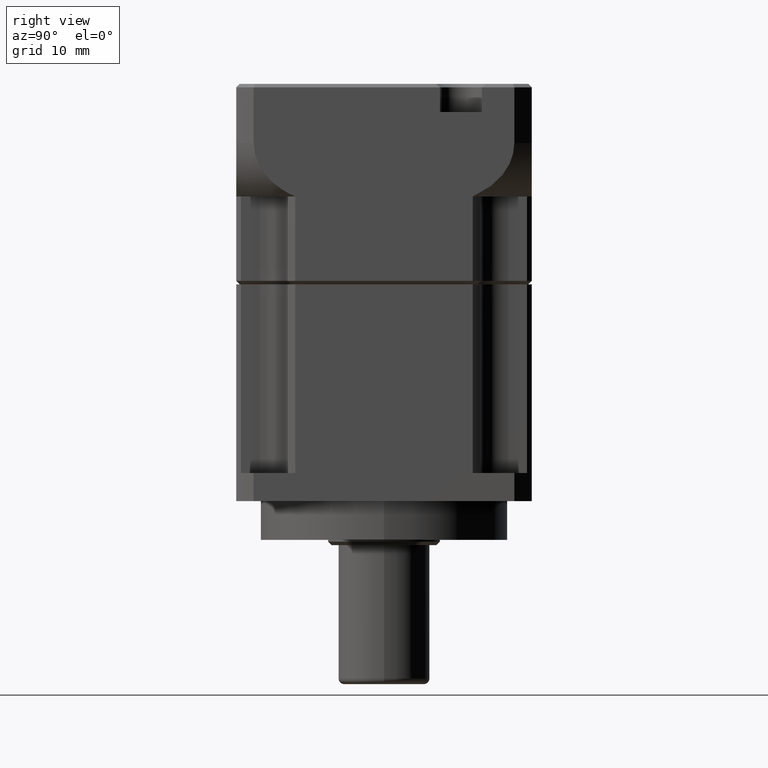
[diagram: clean part render]
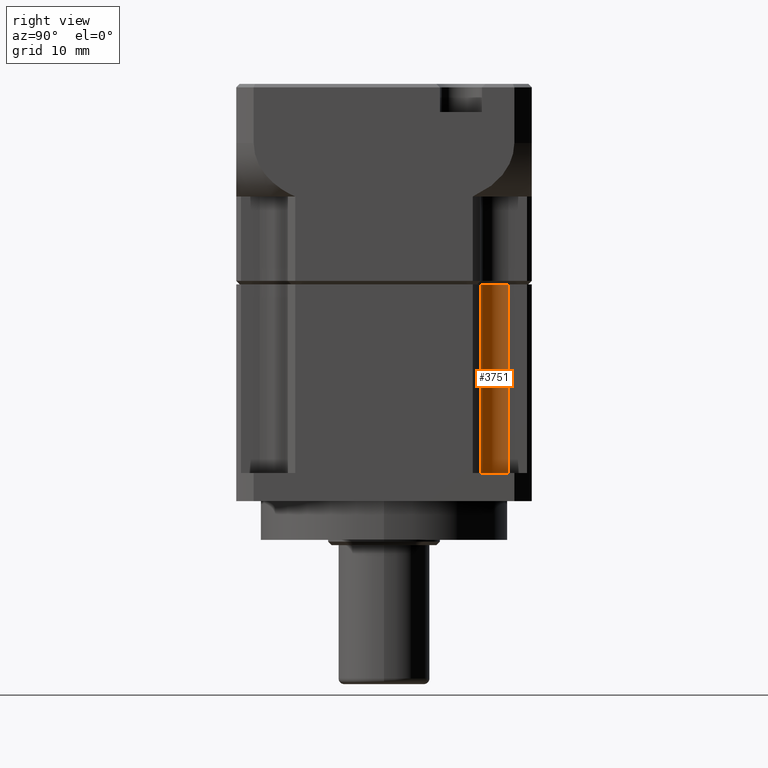
[diagram: same view with one face highlighted and labeled with its STEP entity id]
A machine part, right view. The second image highlights one B-rep face of the part: STEP entity #3751.
In plain terms, the highlighted cylindrical surface (edge-blend (fillet) strip) has radius 4 mm, axis along (-0, -0, -1).
Its self-contained STEP definition (entity closure, byte-faithful):
#293 = DIRECTION ( 'NONE',  ( -1.000000000000000000, 0.0000000000000000000, 0.0000000000000000000 ) ) ;
#850 = CARTESIAN_POINT ( 'NONE',  ( 3671.281545255493700, 1430.015802524130800, 0.0000000000000000000 ) ) ;
#1004 = EDGE_CURVE ( 'NONE', #6354, #9099, #2531, .T. ) ;
#1050 = CARTESIAN_POINT ( 'NONE',  ( 3671.281545320003300, 1434.015802565369500, 0.0000000000000000000 ) ) ;
#1784 = CARTESIAN_POINT ( 'NONE',  ( 3671.281545255493700, 1430.015802524130800, 26.80000000000000100 ) ) ;
#1896 = DIRECTION ( 'NONE',  ( -0.0000000000000000000, -0.0000000000000000000, -1.000000000000000000 ) ) ;
#1966 = CARTESIAN_POINT ( 'NONE',  ( 3671.281545255493700, 1430.015802524130800, 26.80000000000000100 ) ) ;
#2011 = CARTESIAN_POINT ( 'NONE',  ( 3671.281545320003300, 1434.015802565369500, 26.80000000000000100 ) ) ;
#2071 = CARTESIAN_POINT ( 'NONE',  ( 3667.281545278764500, 1434.015802557830500, 26.80000000000000100 ) ) ;
#2369 = VERTEX_POINT ( 'NONE', #850 ) ;
#2531 = LINE ( 'NONE', #2071, #2810 ) ;
#2810 = VECTOR ( 'NONE', #6257, 1000.000000000000000 ) ;
#3091 = DIRECTION ( 'NONE',  ( -0.0000000000000000000, -0.0000000000000000000, -1.000000000000000000 ) ) ;
#3629 = EDGE_CURVE ( 'NONE', #2369, #9099, #4958, .T. ) ;
#3750 = DIRECTION ( 'NONE',  ( -0.0000000000000000000, -0.0000000000000000000, -1.000000000000000000 ) ) ;
#3751 = ADVANCED_FACE ( 'NONE', ( #5233 ), #5368, .F. ) ;
#3861 = CARTESIAN_POINT ( 'NONE',  ( 3671.281545320003300, 1434.015802565369500, 26.80000000000000100 ) ) ;
#4541 = ORIENTED_EDGE ( 'NONE', *, *, #3629, .T. ) ;
#4681 = EDGE_CURVE ( 'NONE', #9862, #6354, #8823, .T. ) ;
#4958 = CIRCLE ( 'NONE', #7074, 4.000000041239015800 ) ;
#5233 = FACE_OUTER_BOUND ( 'NONE', #10020, .T. ) ;
#5368 = CYLINDRICAL_SURFACE ( 'NONE', #9207, 4.000000041239015800 ) ;
#5372 = DIRECTION ( 'NONE',  ( 1.000000000000000000, 0.0000000000000000000, 0.0000000000000000000 ) ) ;
#5863 = CARTESIAN_POINT ( 'NONE',  ( 3667.281545278764500, 1434.015802557830500, 26.80000000000000100 ) ) ;
#6257 = DIRECTION ( 'NONE',  ( -0.0000000000000000000, -0.0000000000000000000, -1.000000000000000000 ) ) ;
#6354 = VERTEX_POINT ( 'NONE', #5863 ) ;
#6499 = VECTOR ( 'NONE', #1896, 1000.000000000000000 ) ;
#7074 = AXIS2_PLACEMENT_3D ( 'NONE', #1050, #8875, #5372 ) ;
#7298 = ORIENTED_EDGE ( 'NONE', *, *, #4681, .F. ) ;
#7337 = LINE ( 'NONE', #1966, #6499 ) ;
#7465 = ORIENTED_EDGE ( 'NONE', *, *, #1004, .F. ) ;
#8254 = EDGE_CURVE ( 'NONE', #9862, #2369, #7337, .T. ) ;
#8498 = ORIENTED_EDGE ( 'NONE', *, *, #8254, .T. ) ;
#8823 = CIRCLE ( 'NONE', #10436, 4.000000041239015800 ) ;
#8875 = DIRECTION ( 'NONE',  ( -0.0000000000000000000, -0.0000000000000000000, -1.000000000000000000 ) ) ;
#9099 = VERTEX_POINT ( 'NONE', #10921 ) ;
#9207 = AXIS2_PLACEMENT_3D ( 'NONE', #2011, #3750, #293 ) ;
#9862 = VERTEX_POINT ( 'NONE', #1784 ) ;
#9903 = DIRECTION ( 'NONE',  ( 1.000000000000000000, 0.0000000000000000000, 0.0000000000000000000 ) ) ;
#10020 = EDGE_LOOP ( 'NONE', ( #4541, #7465, #7298, #8498 ) ) ;
#10436 = AXIS2_PLACEMENT_3D ( 'NONE', #3861, #3091, #9903 ) ;
#10921 = CARTESIAN_POINT ( 'NONE',  ( 3667.281545278764500, 1434.015802557830500, 0.0000000000000000000 ) ) ;